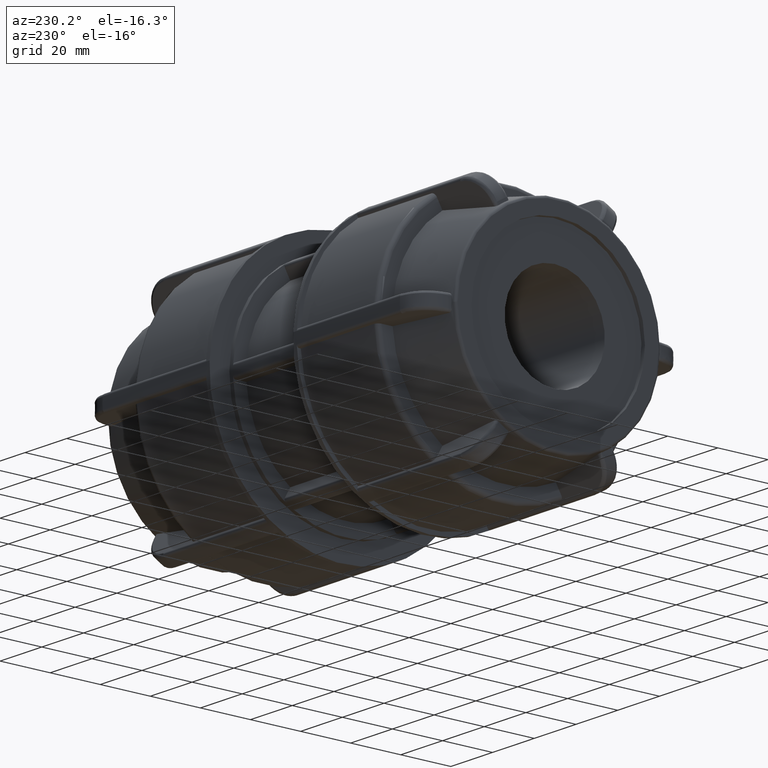
[diagram: clean part render]
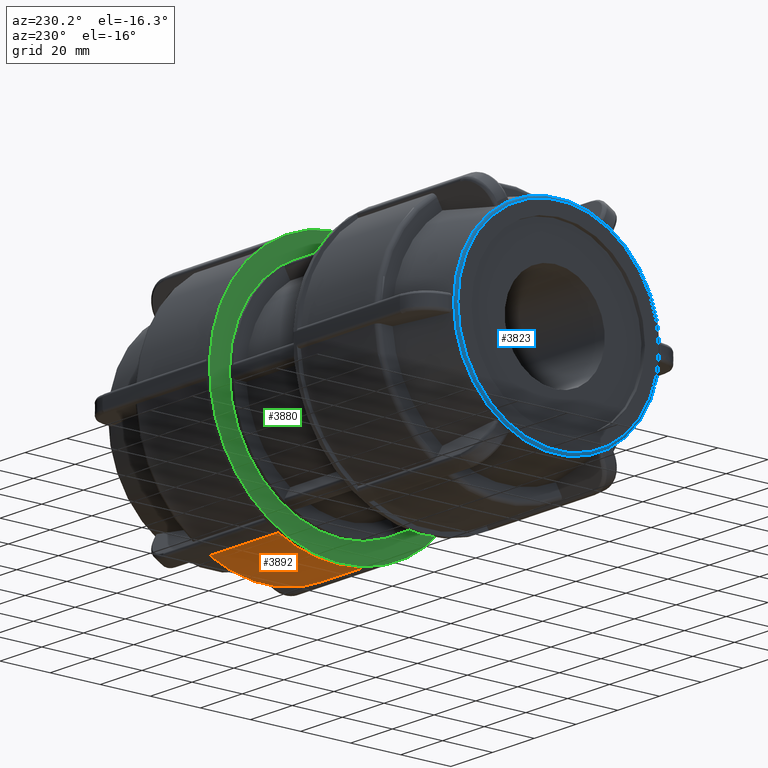
[diagram: same view with three faces highlighted in distinct colors, each labeled with its STEP entity id]
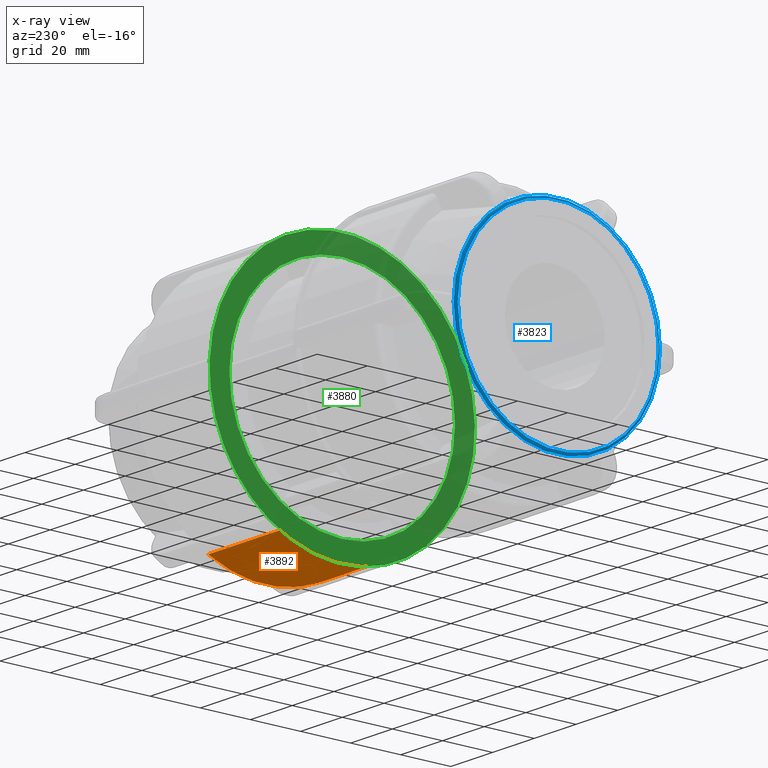
[diagram: x-ray of the same camera — body ghosted, the three highlighted faces saturated]
A machine part, auxiliary view with three faces highlighted in distinct colors.
The next image is the same camera in x-ray (body ghosted, the three faces saturated) — at least one of them is partly hidden behind the body in this view.
Their STEP definitions:

[orange] entity #3892 — the highlighted cylindrical surface (partial cylindrical patch) has radius 51.41 mm, axis along (1, 0, 0).
#506=FACE_OUTER_BOUND('',#758,.T.);
#758=EDGE_LOOP('',(#3452,#3453,#3454,#3455));
#963=LINE('',#7281,#1191);
#993=LINE('',#7806,#1221);
#1191=VECTOR('',#5165,35.07);
#1221=VECTOR('',#5287,35.07);
#1453=CIRCLE('',#4303,51.41);
#1459=CIRCLE('',#4315,51.41);
#1763=VERTEX_POINT('',#7278);
#1764=VERTEX_POINT('',#7280);
#1817=VERTEX_POINT('',#7794);
#1818=VERTEX_POINT('',#7805);
#2279=EDGE_CURVE('',#1764,#1763,#963,.T.);
#2361=EDGE_CURVE('',#1818,#1817,#993,.T.);
#2393=EDGE_CURVE('',#1763,#1818,#1453,.T.);
#2401=EDGE_CURVE('',#1764,#1817,#1459,.T.);
#3452=ORIENTED_EDGE('',*,*,#2361,.T.);
#3453=ORIENTED_EDGE('',*,*,#2401,.F.);
#3454=ORIENTED_EDGE('',*,*,#2279,.T.);
#3455=ORIENTED_EDGE('',*,*,#2393,.T.);
#3684=CYLINDRICAL_SURFACE('',#4314,51.41);
#3892=ADVANCED_FACE('',(#506),#3684,.T.);
#4303=AXIS2_PLACEMENT_3D('',#7915,#5343,#5344);
#4314=AXIS2_PLACEMENT_3D('',#7930,#5367,#5368);
#4315=AXIS2_PLACEMENT_3D('',#7931,#5369,#5370);
#5165=DIRECTION('',(-1.,-3.06161699786838E-16,0.));
#5287=DIRECTION('',(1.,3.06161699786838E-16,0.));
#5343=DIRECTION('center_axis',(1.,3.06161699786838E-16,0.));
#5344=DIRECTION('ref_axis',(0.,0.,-1.));
#5367=DIRECTION('center_axis',(1.,3.06161699786838E-16,0.));
#5368=DIRECTION('ref_axis',(-4.64848907677115E-16,1.,0.));
#5369=DIRECTION('center_axis',(1.,3.06161699786838E-16,0.));
#5370=DIRECTION('ref_axis',(3.07735423087113E-16,-1.,1.83697019872103E-16));
#7278=CARTESIAN_POINT('',(21.71,-22.9287228059952,-46.0137128526468));
#7280=CARTESIAN_POINT('',(56.78,-22.9287228059952,-46.0137128526468));
#7281=CARTESIAN_POINT('',(40.08,-22.9287228059952,-46.0137128526468));
#7794=CARTESIAN_POINT('',(56.78,22.9287228059951,-46.0137128526469));
#7805=CARTESIAN_POINT('',(21.71,22.9287228059951,-46.0137128526469));
#7806=CARTESIAN_POINT('',(40.08,22.9287228059951,-46.0137128526469));
#7915=CARTESIAN_POINT('Origin',(21.71,6.64677050237226E-15,0.));
#7930=CARTESIAN_POINT('Origin',(40.08,1.22709609274565E-14,0.));
#7931=CARTESIAN_POINT('Origin',(56.78,1.73838613138967E-14,0.));

[blue] entity #3823 — the highlighted toroidal blend (fillet) surface has major radius 40.1109 mm and minor (blend) radius 1 mm.
#29=TOROIDAL_SURFACE('',#4184,40.1109003688227,1.);
#202=FACE_BOUND('',#683,.T.);
#437=FACE_OUTER_BOUND('',#682,.T.);
#682=EDGE_LOOP('',(#3078));
#683=EDGE_LOOP('',(#3079));
#1388=CIRCLE('',#4185,40.1109003688227);
#1389=CIRCLE('',#4186,41.095708121835);
#1707=VERTEX_POINT('',#6910);
#1708=VERTEX_POINT('',#6912);
#2204=EDGE_CURVE('',#1707,#1707,#1388,.T.);
#2205=EDGE_CURVE('',#1708,#1708,#1389,.T.);
#3078=ORIENTED_EDGE('',*,*,#2204,.T.);
#3079=ORIENTED_EDGE('',*,*,#2205,.T.);
#3823=ADVANCED_FACE('',(#437,#202),#29,.T.);
#4184=AXIS2_PLACEMENT_3D('',#6909,#5031,#5032);
#4185=AXIS2_PLACEMENT_3D('',#6911,#5033,#5034);
#4186=AXIS2_PLACEMENT_3D('',#6913,#5035,#5036);
#5031=DIRECTION('center_axis',(1.,3.06161699786838E-16,0.));
#5032=DIRECTION('ref_axis',(0.,0.,-1.));
#5033=DIRECTION('center_axis',(1.,3.06161699786838E-16,0.));
#5034=DIRECTION('ref_axis',(3.06161699786838E-16,-1.,1.83697019872103E-16));
#5035=DIRECTION('center_axis',(-1.,-4.32248748247372E-16,-4.32248748247372E-16));
#5036=DIRECTION('ref_axis',(4.32248748247372E-16,-1.,3.06161699786838E-17));
#6909=CARTESIAN_POINT('Origin',(-82.5,-2.52583402324142E-14,0.));
#6910=CARTESIAN_POINT('',(-83.5,40.1109003688227,-2.45608428737986E-15));
#6911=CARTESIAN_POINT('Origin',(-83.5,-2.5564501932201E-14,0.));
#6912=CARTESIAN_POINT('',(-82.6736481776669,41.0957081218349,-1.25819318525248E-14));
#6913=CARTESIAN_POINT('Origin',(-82.6736481776669,-2.22044604925031E-14,
-6.29096592626238E-15));

[green] entity #3880 — the highlighted planar face has unit normal (-1, -0, 0).
#208=FACE_BOUND('',#746,.T.);
#287=PLANE('',#4289);
#494=FACE_OUTER_BOUND('',#745,.T.);
#745=EDGE_LOOP('',(#3394));
#746=EDGE_LOOP('',(#3395));
#1251=CIRCLE('',#3931,45.05);
#1398=CIRCLE('',#4204,53.);
#1491=VERTEX_POINT('',#5499);
#1721=VERTEX_POINT('',#7009);
#1870=EDGE_CURVE('',#1491,#1491,#1251,.T.);
#2223=EDGE_CURVE('',#1721,#1721,#1398,.T.);
#3394=ORIENTED_EDGE('',*,*,#2223,.F.);
#3395=ORIENTED_EDGE('',*,*,#1870,.T.);
#3880=ADVANCED_FACE('',(#494,#208),#287,.T.);
#3931=AXIS2_PLACEMENT_3D('',#5500,#4388,#4389);
#4204=AXIS2_PLACEMENT_3D('',#7010,#5076,#5077);
#4289=AXIS2_PLACEMENT_3D('',#7895,#5313,#5314);
#4388=DIRECTION('center_axis',(1.,3.06161699786838E-16,0.));
#4389=DIRECTION('ref_axis',(0.,0.,-1.));
#5076=DIRECTION('center_axis',(1.,3.06161699786838E-16,0.));
#5077=DIRECTION('ref_axis',(0.,0.,-1.));
#5313=DIRECTION('center_axis',(-1.,-3.06161699786838E-16,0.));
#5314=DIRECTION('ref_axis',(0.,0.,1.));
#5499=CARTESIAN_POINT('',(20.04,25.1978487353781,-37.3439542511101));
#5500=CARTESIAN_POINT('Origin',(20.04,6.13548046372824E-15,0.));
#7009=CARTESIAN_POINT('',(20.04,29.1811343706938,-44.2432073525362));
#7010=CARTESIAN_POINT('Origin',(20.04,6.13548046372824E-15,0.));
#7895=CARTESIAN_POINT('Origin',(20.04,53.,0.));